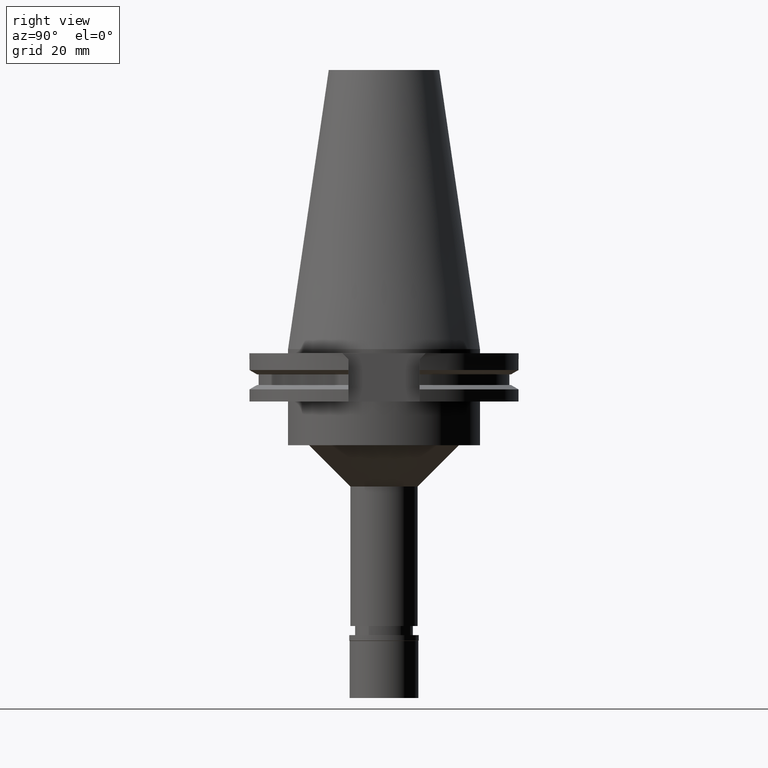
[diagram: clean part render]
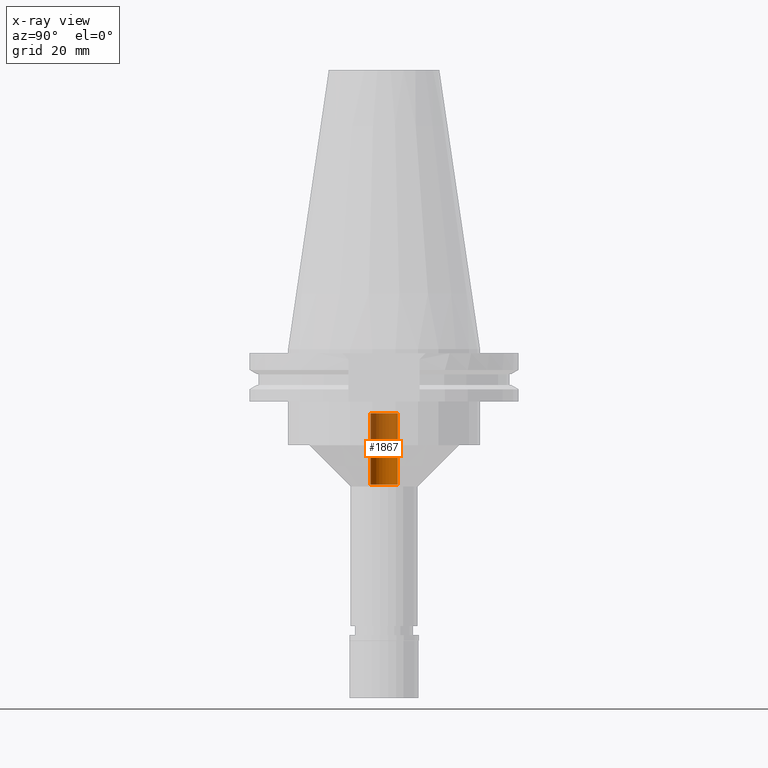
[diagram: x-ray — body ghosted, one internal face saturated and labeled with its STEP entity id]
A machine part, right view, then the same camera in x-ray: the body is ghosted and one INTERNAL B-rep face — a face not visible from any outside direction — is saturated and labeled: STEP entity #1867.
In plain terms, the highlighted cylindrical surface (edge-blend (fillet) strip) has radius 5 mm, axis along (0, 0, -1).
Its self-contained STEP definition (entity closure, byte-faithful):
#34 = AXIS2_PLACEMENT_3D ( 'NONE', #2852, #810, #2431 ) ;
#87 = VERTEX_POINT ( 'NONE', #1712 ) ;
#107 = CARTESIAN_POINT ( 'NONE',  ( 0.0000000000000000000, 5.000000000000000000, -49.39999999999999858 ) ) ;
#127 = CARTESIAN_POINT ( 'NONE',  ( 0.0000000000000000000, -5.000000000000000000, -49.39999999999999858 ) ) ;
#182 = DIRECTION ( 'NONE',  ( 0.0000000000000000000, -1.000000000000000000, 0.0000000000000000000 ) ) ;
#210 = EDGE_CURVE ( 'NONE', #1181, #87, #2845, .T. ) ;
#239 = DIRECTION ( 'NONE',  ( 0.0000000000000000000, -1.000000000000000000, 0.0000000000000000000 ) ) ;
#300 = LINE ( 'NONE', #363, #2992 ) ;
#363 = CARTESIAN_POINT ( 'NONE',  ( 0.0000000000000000000, -5.000000000000000000, -49.39999999999999858 ) ) ;
#393 = ORIENTED_EDGE ( 'NONE', *, *, #1415, .T. ) ;
#446 = AXIS2_PLACEMENT_3D ( 'NONE', #2980, #685, #182 ) ;
#448 = CARTESIAN_POINT ( 'NONE',  ( 0.0000000000000000000, -5.000000000000000000, -23.40000000000000213 ) ) ;
#507 = EDGE_LOOP ( 'NONE', ( #393, #2931, #2561, #2271 ) ) ;
#589 = VERTEX_POINT ( 'NONE', #127 ) ;
#627 = EDGE_CURVE ( 'NONE', #589, #1181, #1896, .T. ) ;
#655 = VERTEX_POINT ( 'NONE', #448 ) ;
#685 = DIRECTION ( 'NONE',  ( 0.0000000000000000000, 0.0000000000000000000, -1.000000000000000000 ) ) ;
#765 = CARTESIAN_POINT ( 'NONE',  ( 0.0000000000000000000, 2.603354165626999772E-14, 112.5799999999999983 ) ) ;
#810 = DIRECTION ( 'NONE',  ( 0.0000000000000000000, 0.0000000000000000000, 1.000000000000000000 ) ) ;
#963 = AXIS2_PLACEMENT_3D ( 'NONE', #765, #1038, #239 ) ;
#1038 = DIRECTION ( 'NONE',  ( 0.0000000000000000000, 0.0000000000000000000, -1.000000000000000000 ) ) ;
#1075 = FACE_OUTER_BOUND ( 'NONE', #507, .T. ) ;
#1181 = VERTEX_POINT ( 'NONE', #107 ) ;
#1380 = DIRECTION ( 'NONE',  ( 0.0000000000000000000, 0.0000000000000000000, 1.000000000000000000 ) ) ;
#1415 = EDGE_CURVE ( 'NONE', #87, #655, #1491, .T. ) ;
#1479 = EDGE_CURVE ( 'NONE', #589, #655, #300, .T. ) ;
#1491 = CIRCLE ( 'NONE', #34, 5.000000000000000000 ) ;
#1712 = CARTESIAN_POINT ( 'NONE',  ( 0.0000000000000000000, 5.000000000000000000, -23.40000000000000213 ) ) ;
#1867 = ADVANCED_FACE ( 'NONE', ( #1075 ), #3107, .F. ) ;
#1888 = VECTOR ( 'NONE', #3054, 1000.000000000000000 ) ;
#1896 = CIRCLE ( 'NONE', #446, 5.000000000000000000 ) ;
#2271 = ORIENTED_EDGE ( 'NONE', *, *, #210, .T. ) ;
#2318 = CARTESIAN_POINT ( 'NONE',  ( 0.0000000000000000000, 5.000000000000000000, -49.39999999999999858 ) ) ;
#2431 = DIRECTION ( 'NONE',  ( 0.0000000000000000000, 1.000000000000000000, 0.0000000000000000000 ) ) ;
#2561 = ORIENTED_EDGE ( 'NONE', *, *, #627, .T. ) ;
#2845 = LINE ( 'NONE', #2318, #1888 ) ;
#2852 = CARTESIAN_POINT ( 'NONE',  ( 0.0000000000000000000, 2.603354165626999772E-14, -23.40000000000000213 ) ) ;
#2931 = ORIENTED_EDGE ( 'NONE', *, *, #1479, .F. ) ;
#2980 = CARTESIAN_POINT ( 'NONE',  ( 0.0000000000000000000, 2.603354165626999772E-14, -49.39999999999999858 ) ) ;
#2992 = VECTOR ( 'NONE', #1380, 1000.000000000000000 ) ;
#3054 = DIRECTION ( 'NONE',  ( 0.0000000000000000000, 0.0000000000000000000, 1.000000000000000000 ) ) ;
#3107 = CYLINDRICAL_SURFACE ( 'NONE', #963, 5.000000000000000000 ) ;